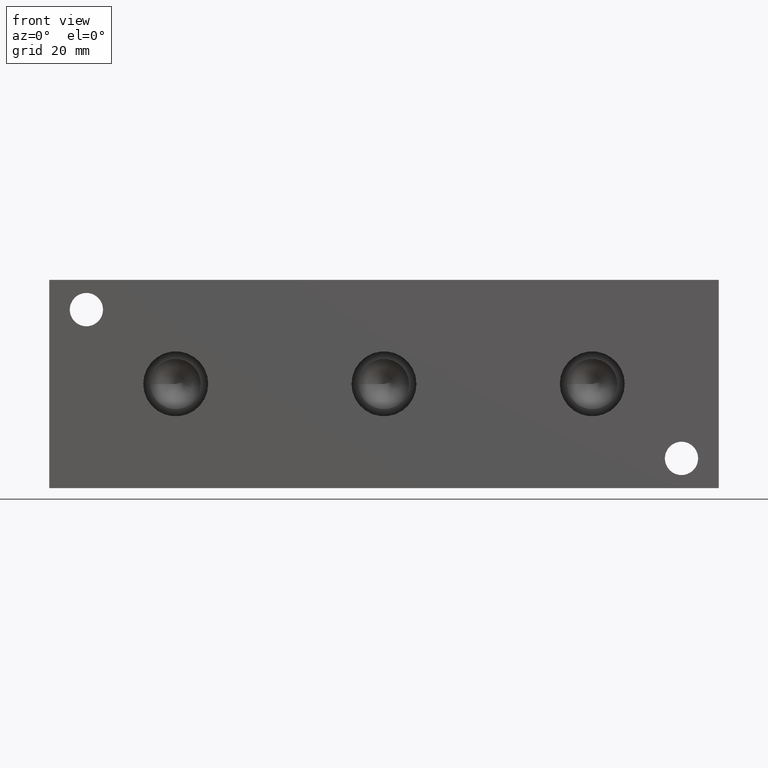
[diagram: clean part render]
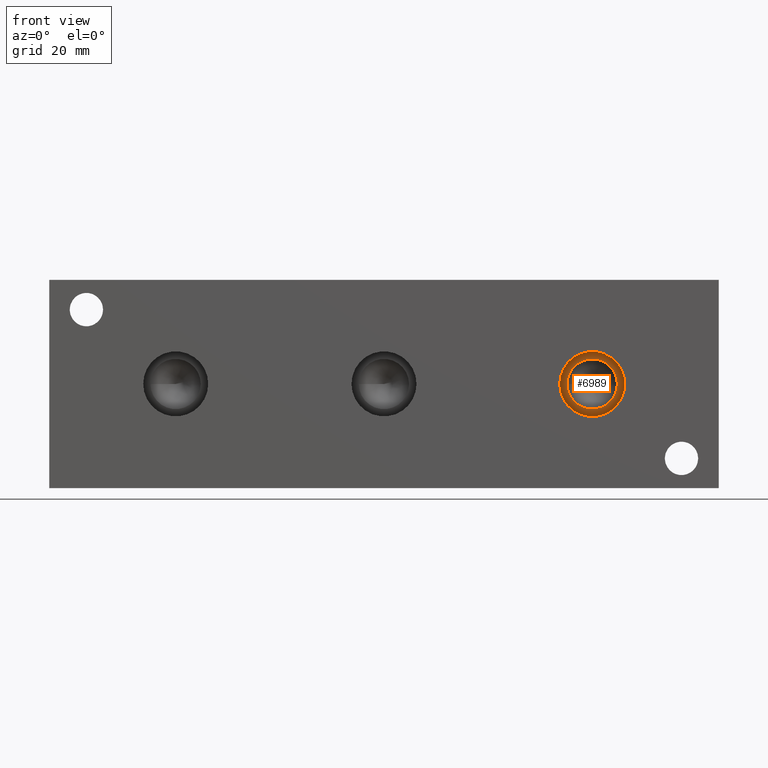
[diagram: same view with one face highlighted and labeled with its STEP entity id]
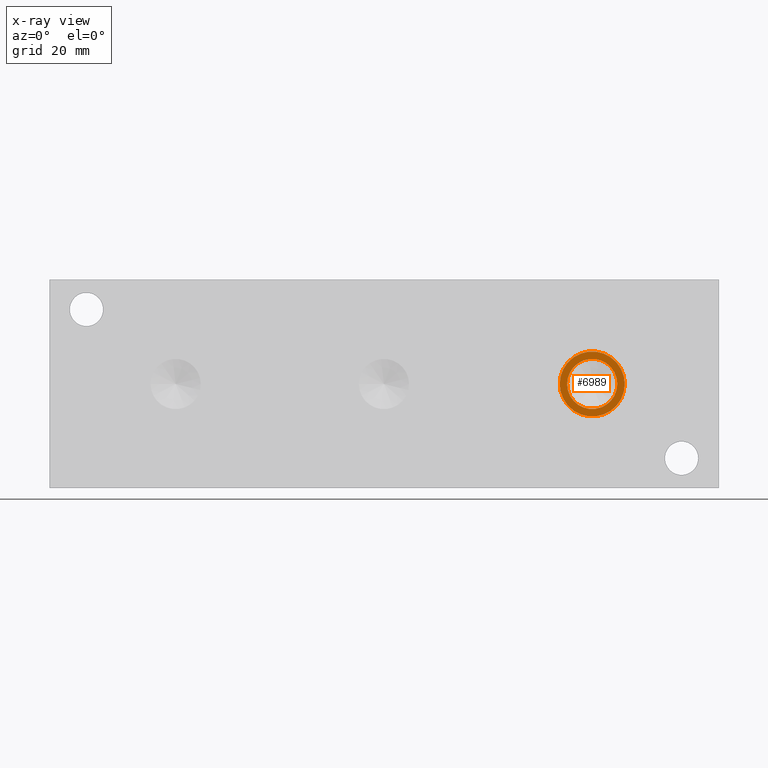
[diagram: x-ray of the same camera — body ghosted, the highlighted face saturated]
A machine part, front view. The second image highlights one B-rep face of the part: STEP entity #6989.
The next image is the same camera in x-ray: the body ghosted, the highlighted face saturated — about 0% of this face is hidden behind the body in this view.
In plain terms, the highlighted planar face has unit normal (0, -1, 0).
Its self-contained STEP definition (entity closure, byte-faithful):
#82=CIRCLE('',#7293,6.9342);
#83=CIRCLE('',#7294,6.9342);
#84=CIRCLE('',#7295,5.3594);
#138=FACE_BOUND('',#1096,.T.);
#362=PLANE('',#7292);
#705=FACE_OUTER_BOUND('',#1095,.T.);
#1095=EDGE_LOOP('',(#6137,#6138));
#1096=EDGE_LOOP('',(#6139));
#3332=VERTEX_POINT('',#11905);
#3333=VERTEX_POINT('',#11906);
#3334=VERTEX_POINT('',#11909);
#4281=EDGE_CURVE('',#3332,#3333,#82,.T.);
#4282=EDGE_CURVE('',#3333,#3332,#83,.T.);
#4283=EDGE_CURVE('',#3334,#3334,#84,.T.);
#6137=ORIENTED_EDGE('',*,*,#4281,.T.);
#6138=ORIENTED_EDGE('',*,*,#4282,.T.);
#6139=ORIENTED_EDGE('',*,*,#4283,.F.);
#6989=ADVANCED_FACE('',(#705,#138),#362,.T.);
#7292=AXIS2_PLACEMENT_3D('',#11904,#8537,#8538);
#7293=AXIS2_PLACEMENT_3D('',#11907,#8539,#8540);
#7294=AXIS2_PLACEMENT_3D('',#11908,#8541,#8542);
#7295=AXIS2_PLACEMENT_3D('',#11910,#8543,#8544);
#8537=DIRECTION('center_axis',(0.,-1.,0.));
#8538=DIRECTION('ref_axis',(1.,0.,0.));
#8539=DIRECTION('center_axis',(0.,-1.,0.));
#8540=DIRECTION('ref_axis',(1.,0.,0.));
#8541=DIRECTION('center_axis',(0.,-1.,0.));
#8542=DIRECTION('ref_axis',(1.,0.,0.));
#8543=DIRECTION('center_axis',(0.,-1.,0.));
#8544=DIRECTION('ref_axis',(1.,0.,0.));
#11904=CARTESIAN_POINT('Origin',(115.8748,11.4046,22.225));
#11905=CARTESIAN_POINT('',(122.809,11.4046,22.225));
#11906=CARTESIAN_POINT('',(108.9406,11.4046,22.225));
#11907=CARTESIAN_POINT('Origin',(115.8748,11.4046,22.225));
#11908=CARTESIAN_POINT('Origin',(115.8748,11.4046,22.225));
#11909=CARTESIAN_POINT('',(110.5154,11.4046,22.225));
#11910=CARTESIAN_POINT('Origin',(115.8748,11.4046,22.225));